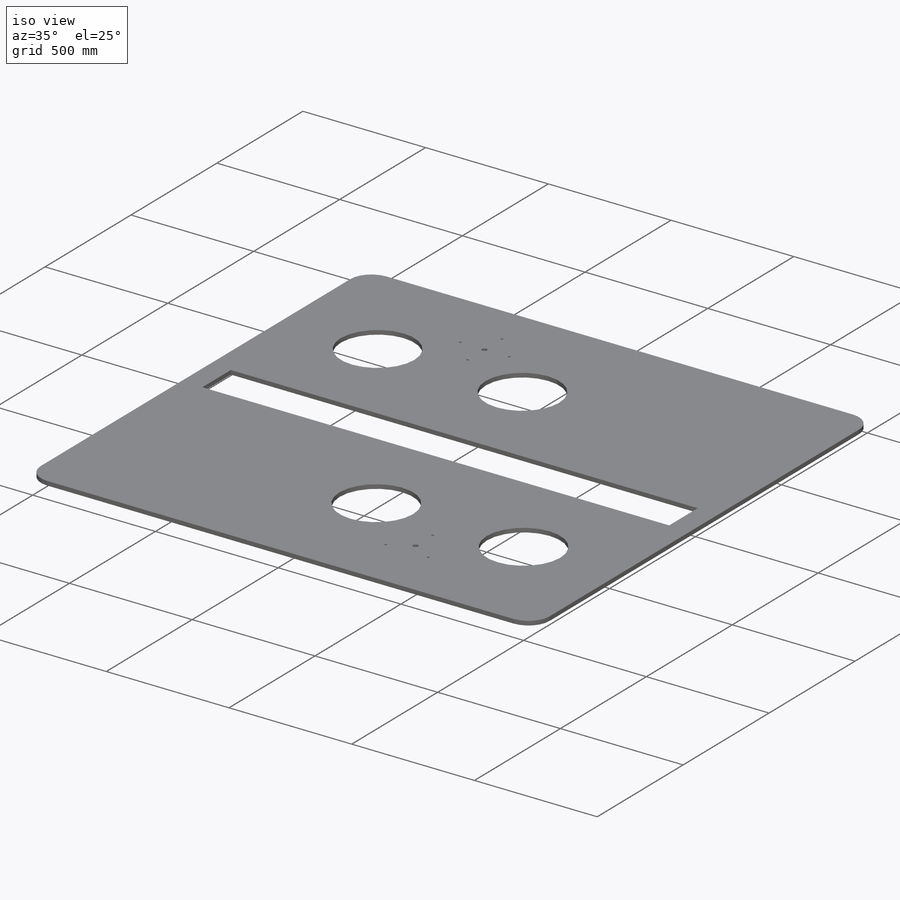
[diagram: iso view]
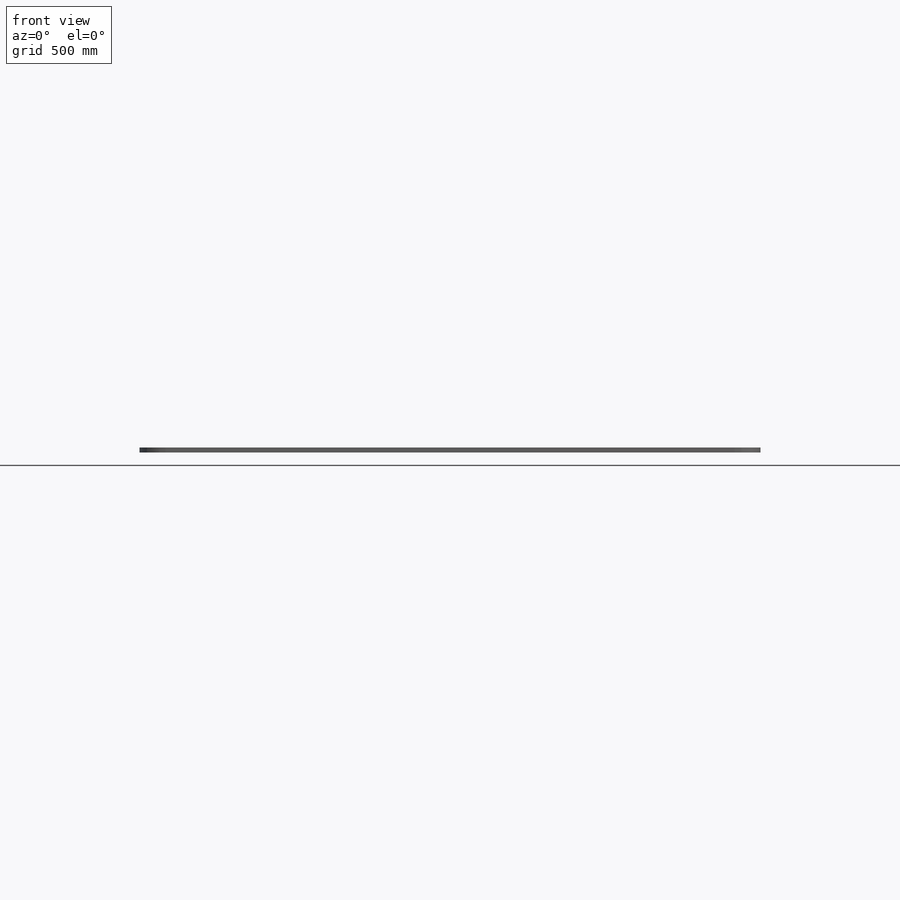
[diagram: front view]
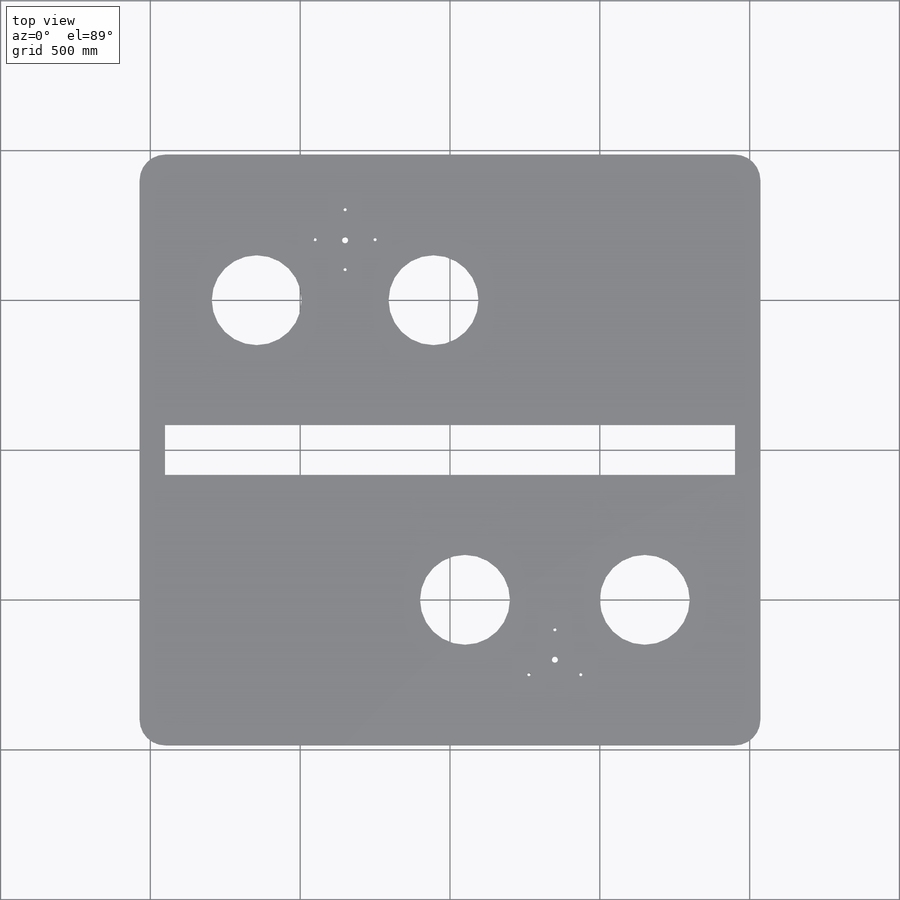
[diagram: top view]
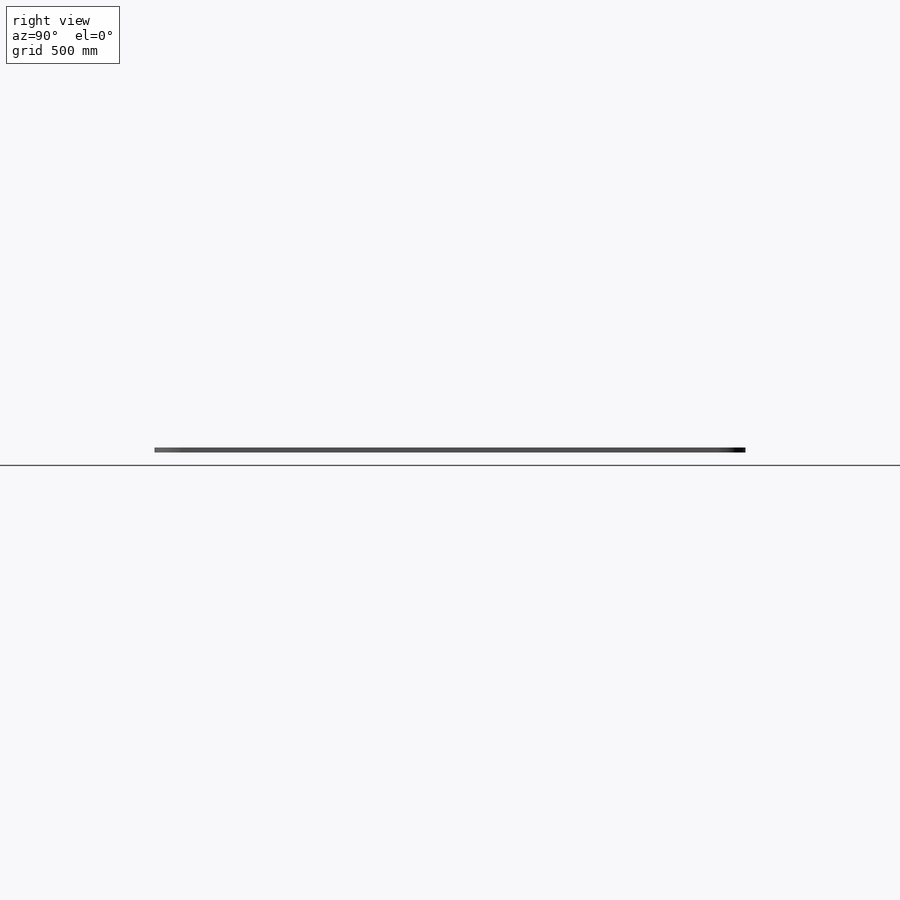
[diagram: right view]
SOLIDWORKS PART (.sldprt)
format: sldprt  version: not decoded by parser v0  size: 371,712 bytes
history: native  units: mm
features: thread x28, plane x3, material x1 (+9 scaffold rows collapsed)
feature tree (41):
  scaffold x9  (default folders/planes/origin — collapsed)
  material  "材质 <未指定>"
  plane  "前视"
  plane  "上视"
  plane  "右视"
  thread  "孔螺蚊线11-基体零件-table-1"  Diameter=6mm  [1 undecoded]
  thread  "孔螺蚊线12-基体零件-table-1"  Diameter=6mm  [1 undecoded]
  thread  "孔螺蚊线13-基体零件-table-1"  Diameter=6mm  [1 undecoded]
  thread  "孔螺蚊线14-基体零件-table-1"  Diameter=6mm  [1 undecoded]
  thread  "孔螺蚊线15-基体零件-table-1"  Diameter=6mm  [1 undecoded]
  thread  "孔螺蚊线16-基体零件-table-1"  Diameter=6mm  [1 undecoded]
  thread  "孔螺蚊线17-基体零件-table-1"  Diameter=6mm  [1 undecoded]
  thread  "孔螺蚊线18-基体零件-table-1"  Diameter=6mm  [1 undecoded]
  thread  "孔螺蚊线19-基体零件-table-1"  Diameter=6mm  [1 undecoded]
  thread  "孔螺蚊线20-基体零件-table-1"  Diameter=6mm  [1 undecoded]
  thread  "孔螺蚊线21-基体零件-table-1"  Diameter=6mm  [1 undecoded]
  thread  "孔螺蚊线22-基体零件-table-1"  Diameter=6mm  [1 undecoded]
  thread  "孔螺蚊线23-基体零件-table-1"  Diameter=6mm  [1 undecoded]
  thread  "孔螺蚊线24-基体零件-table-1"  Diameter=6mm  [1 undecoded]
  thread  "孔螺蚊线25-基体零件-table-1"  Diameter=6mm  [1 undecoded]
  thread  "孔螺蚊线26-基体零件-table-1"  Diameter=6mm  [1 undecoded]
  thread  "孔螺蚊线27-基体零件-table-1"  Diameter=6mm  [1 undecoded]
  thread  "孔螺蚊线28-基体零件-table-1"  Diameter=6mm  [1 undecoded]
  thread  "孔螺蚊线29-基体零件-table-1"  Diameter=6mm  [1 undecoded]
  thread  "孔螺蚊线30-基体零件-table-1"  Diameter=6mm  [1 undecoded]
  thread  "孔螺蚊线31-基体零件-table-1"  Diameter=6mm  [1 undecoded]
  thread  "孔螺蚊线32-基体零件-table-1"  Diameter=6mm  [1 undecoded]
  thread  "孔螺蚊线33-基体零件-table-1"  Diameter=6mm  [1 undecoded]
  thread  "孔螺蚊线34-基体零件-table-1"  Diameter=6mm  [1 undecoded]
  thread  "孔螺蚊线35-基体零件-table-1"  Diameter=6mm  [1 undecoded]
  thread  "孔螺蚊线36-基体零件-table-1"  Diameter=6mm  [1 undecoded]
  thread  "孔螺蚊线37-基体零件-table-1"  Diameter=6mm  [1 undecoded]
  thread  "孔螺蚊线38-基体零件-table-1"  Diameter=6mm  [1 undecoded]
decode coverage: 28 of 28 modeling features carry decoded parameters
note: 28 parameter values undecoded
note: suppression state not decoded; provenance and decode notes live in map.json
